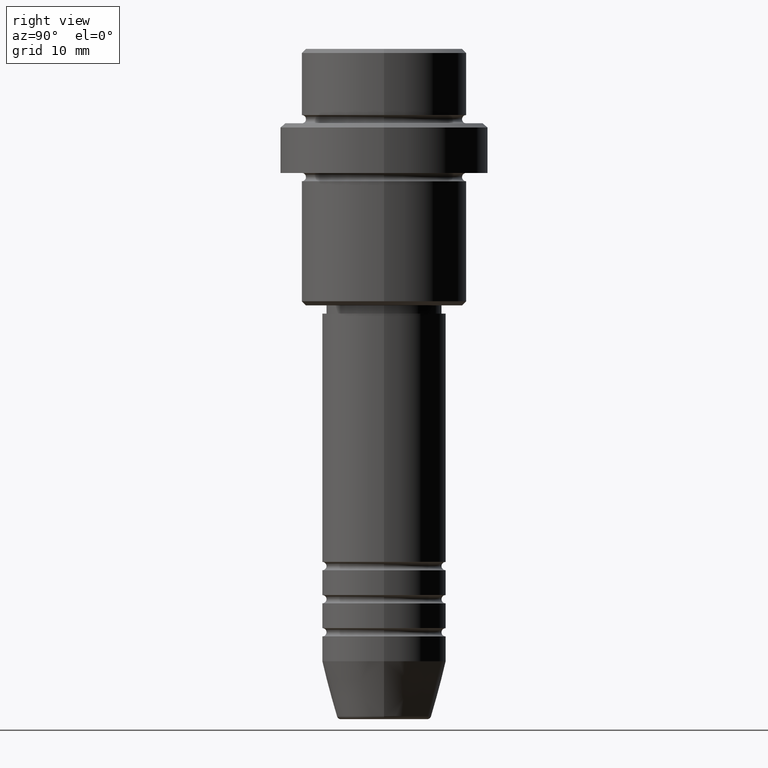
[diagram: clean part render]
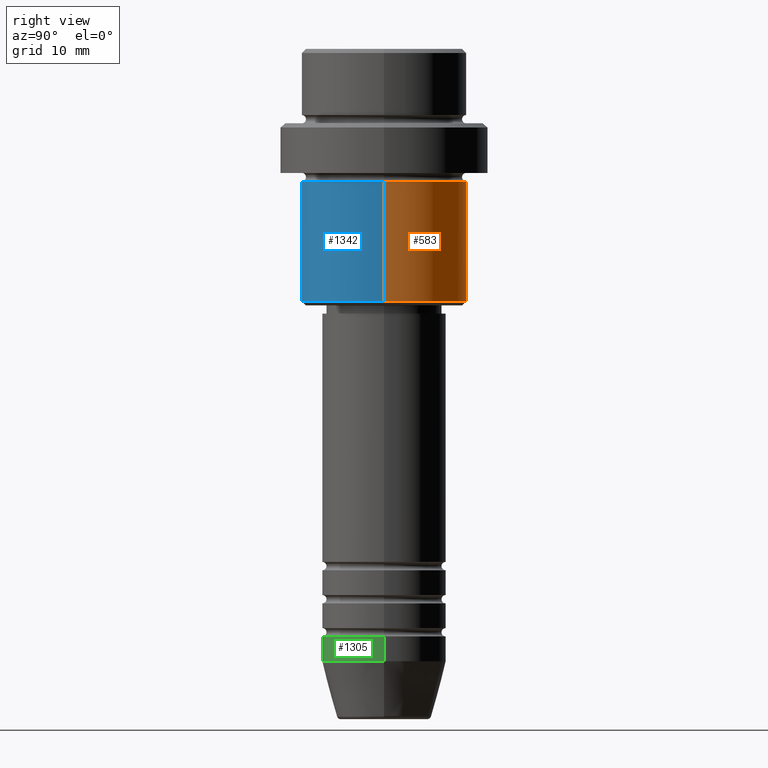
[diagram: same view with three faces highlighted in distinct colors, each labeled with its STEP entity id]
A machine part, right view with three faces highlighted in distinct colors.
Their STEP definitions:

[orange] entity #583 — the highlighted cylindrical surface (partial cylindrical patch) has radius 10 mm, axis along (-0, -0, 1).
#48 = AXIS2_PLACEMENT_3D ( 'NONE', #392, #736, #515 ) ;
#159 = ORIENTED_EDGE ( 'NONE', *, *, #489, .T. ) ;
#193 = LINE ( 'NONE', #874, #1370 ) ;
#234 = CARTESIAN_POINT ( 'NONE',  ( 9.999999999999998224, 0.000000000000000000, -16.00000000000000000 ) ) ;
#270 = EDGE_CURVE ( 'NONE', #924, #590, #950, .T. ) ;
#283 = ORIENTED_EDGE ( 'NONE', *, *, #270, .F. ) ;
#371 = FACE_OUTER_BOUND ( 'NONE', #1042, .T. ) ;
#381 = CARTESIAN_POINT ( 'NONE',  ( -9.999999999999998224, 1.224646799147353059E-15, -16.00000000000000000 ) ) ;
#392 = CARTESIAN_POINT ( 'NONE',  ( 0.000000000000000000, 0.000000000000000000, 0.000000000000000000 ) ) ;
#409 = DIRECTION ( 'NONE',  ( -0.000000000000000000, -0.000000000000000000, 1.000000000000000000 ) ) ;
#410 = ORIENTED_EDGE ( 'NONE', *, *, #754, .T. ) ;
#416 = ORIENTED_EDGE ( 'NONE', *, *, #809, .F. ) ;
#439 = DIRECTION ( 'NONE',  ( -0.000000000000000000, -0.000000000000000000, 1.000000000000000000 ) ) ;
#449 = DIRECTION ( 'NONE',  ( -0.000000000000000000, -0.000000000000000000, 1.000000000000000000 ) ) ;
#489 = EDGE_CURVE ( 'NONE', #1166, #1379, #718, .T. ) ;
#511 = AXIS2_PLACEMENT_3D ( 'NONE', #991, #439, #896 ) ;
#515 = DIRECTION ( 'NONE',  ( 1.000000000000000000, 0.000000000000000000, 0.000000000000000000 ) ) ;
#526 = CARTESIAN_POINT ( 'NONE',  ( -9.999999999999998224, 1.224646799147353059E-15, 0.000000000000000000 ) ) ;
#583 = ADVANCED_FACE ( 'NONE', ( #371 ), #727, .T. ) ;
#590 = VERTEX_POINT ( 'NONE', #381 ) ;
#638 = LINE ( 'NONE', #526, #1170 ) ;
#718 = CIRCLE ( 'NONE', #1258, 9.999999999999998224 ) ;
#727 = CYLINDRICAL_SURFACE ( 'NONE', #48, 9.999999999999998224 ) ;
#736 = DIRECTION ( 'NONE',  ( -0.000000000000000000, -0.000000000000000000, 1.000000000000000000 ) ) ;
#754 = EDGE_CURVE ( 'NONE', #1379, #590, #638, .T. ) ;
#809 = EDGE_CURVE ( 'NONE', #1166, #924, #193, .T. ) ;
#874 = CARTESIAN_POINT ( 'NONE',  ( 9.999999999999998224, 0.000000000000000000, 0.000000000000000000 ) ) ;
#896 = DIRECTION ( 'NONE',  ( 1.000000000000000000, 0.000000000000000000, 0.000000000000000000 ) ) ;
#912 = CARTESIAN_POINT ( 'NONE',  ( 0.000000000000000000, 0.000000000000000000, -30.49999999999998224 ) ) ;
#924 = VERTEX_POINT ( 'NONE', #234 ) ;
#950 = CIRCLE ( 'NONE', #511, 9.999999999999998224 ) ;
#991 = CARTESIAN_POINT ( 'NONE',  ( 0.000000000000000000, 0.000000000000000000, -16.00000000000000000 ) ) ;
#1042 = EDGE_LOOP ( 'NONE', ( #159, #410, #283, #416 ) ) ;
#1166 = VERTEX_POINT ( 'NONE', #1178 ) ;
#1170 = VECTOR ( 'NONE', #409, 1000.000000000000000 ) ;
#1178 = CARTESIAN_POINT ( 'NONE',  ( 9.999999999999998224, 0.000000000000000000, -30.49999999999998224 ) ) ;
#1220 = CARTESIAN_POINT ( 'NONE',  ( -9.999999999999998224, 1.224646799147353059E-15, -30.49999999999998224 ) ) ;
#1222 = DIRECTION ( 'NONE',  ( -1.000000000000000000, 0.000000000000000000, 0.000000000000000000 ) ) ;
#1258 = AXIS2_PLACEMENT_3D ( 'NONE', #912, #449, #1222 ) ;
#1294 = DIRECTION ( 'NONE',  ( -0.000000000000000000, -0.000000000000000000, 1.000000000000000000 ) ) ;
#1370 = VECTOR ( 'NONE', #1294, 1000.000000000000000 ) ;
#1379 = VERTEX_POINT ( 'NONE', #1220 ) ;

[blue] entity #1342 — the highlighted cylindrical surface (partial cylindrical patch) has radius 10 mm, axis along (-0, -0, 1).
#24 = CIRCLE ( 'NONE', #832, 9.999999999999998224 ) ;
#134 = DIRECTION ( 'NONE',  ( 1.000000000000000000, 0.000000000000000000, 0.000000000000000000 ) ) ;
#193 = LINE ( 'NONE', #874, #1370 ) ;
#195 = CARTESIAN_POINT ( 'NONE',  ( 0.000000000000000000, 0.000000000000000000, -16.00000000000000000 ) ) ;
#224 = EDGE_CURVE ( 'NONE', #590, #924, #24, .T. ) ;
#227 = CIRCLE ( 'NONE', #882, 9.999999999999998224 ) ;
#234 = CARTESIAN_POINT ( 'NONE',  ( 9.999999999999998224, 0.000000000000000000, -16.00000000000000000 ) ) ;
#237 = CARTESIAN_POINT ( 'NONE',  ( 0.000000000000000000, 0.000000000000000000, 0.000000000000000000 ) ) ;
#243 = FACE_OUTER_BOUND ( 'NONE', #829, .T. ) ;
#298 = EDGE_CURVE ( 'NONE', #1379, #1166, #227, .T. ) ;
#381 = CARTESIAN_POINT ( 'NONE',  ( -9.999999999999998224, 1.224646799147353059E-15, -16.00000000000000000 ) ) ;
#399 = ORIENTED_EDGE ( 'NONE', *, *, #298, .T. ) ;
#409 = DIRECTION ( 'NONE',  ( -0.000000000000000000, -0.000000000000000000, 1.000000000000000000 ) ) ;
#417 = AXIS2_PLACEMENT_3D ( 'NONE', #237, #1200, #134 ) ;
#493 = ORIENTED_EDGE ( 'NONE', *, *, #754, .F. ) ;
#526 = CARTESIAN_POINT ( 'NONE',  ( -9.999999999999998224, 1.224646799147353059E-15, 0.000000000000000000 ) ) ;
#564 = CYLINDRICAL_SURFACE ( 'NONE', #417, 9.999999999999998224 ) ;
#590 = VERTEX_POINT ( 'NONE', #381 ) ;
#638 = LINE ( 'NONE', #526, #1170 ) ;
#754 = EDGE_CURVE ( 'NONE', #1379, #590, #638, .T. ) ;
#769 = DIRECTION ( 'NONE',  ( 1.000000000000000000, 0.000000000000000000, 0.000000000000000000 ) ) ;
#809 = EDGE_CURVE ( 'NONE', #1166, #924, #193, .T. ) ;
#829 = EDGE_LOOP ( 'NONE', ( #493, #399, #1278, #844 ) ) ;
#832 = AXIS2_PLACEMENT_3D ( 'NONE', #195, #1102, #769 ) ;
#844 = ORIENTED_EDGE ( 'NONE', *, *, #224, .F. ) ;
#874 = CARTESIAN_POINT ( 'NONE',  ( 9.999999999999998224, 0.000000000000000000, 0.000000000000000000 ) ) ;
#882 = AXIS2_PLACEMENT_3D ( 'NONE', #1081, #1072, #1291 ) ;
#924 = VERTEX_POINT ( 'NONE', #234 ) ;
#1072 = DIRECTION ( 'NONE',  ( -0.000000000000000000, -0.000000000000000000, 1.000000000000000000 ) ) ;
#1081 = CARTESIAN_POINT ( 'NONE',  ( 0.000000000000000000, 0.000000000000000000, -30.49999999999998224 ) ) ;
#1102 = DIRECTION ( 'NONE',  ( -0.000000000000000000, -0.000000000000000000, 1.000000000000000000 ) ) ;
#1166 = VERTEX_POINT ( 'NONE', #1178 ) ;
#1170 = VECTOR ( 'NONE', #409, 1000.000000000000000 ) ;
#1178 = CARTESIAN_POINT ( 'NONE',  ( 9.999999999999998224, 0.000000000000000000, -30.49999999999998224 ) ) ;
#1200 = DIRECTION ( 'NONE',  ( -0.000000000000000000, -0.000000000000000000, 1.000000000000000000 ) ) ;
#1220 = CARTESIAN_POINT ( 'NONE',  ( -9.999999999999998224, 1.224646799147353059E-15, -30.49999999999998224 ) ) ;
#1278 = ORIENTED_EDGE ( 'NONE', *, *, #809, .T. ) ;
#1291 = DIRECTION ( 'NONE',  ( -1.000000000000000000, 0.000000000000000000, 0.000000000000000000 ) ) ;
#1294 = DIRECTION ( 'NONE',  ( -0.000000000000000000, -0.000000000000000000, 1.000000000000000000 ) ) ;
#1342 = ADVANCED_FACE ( 'NONE', ( #243 ), #564, .T. ) ;
#1370 = VECTOR ( 'NONE', #1294, 1000.000000000000000 ) ;
#1379 = VERTEX_POINT ( 'NONE', #1220 ) ;

[green] entity #1305 — the highlighted cylindrical surface (partial cylindrical patch) has radius 7.5 mm, axis along (-0, -0, 1).
#25 = CARTESIAN_POINT ( 'NONE',  ( 0.000000000000000000, 0.000000000000000000, 0.000000000000000000 ) ) ;
#51 = ORIENTED_EDGE ( 'NONE', *, *, #1100, .F. ) ;
#62 = DIRECTION ( 'NONE',  ( -0.000000000000000000, -0.000000000000000000, 1.000000000000000000 ) ) ;
#79 = CARTESIAN_POINT ( 'NONE',  ( 0.000000000000000000, 0.000000000000000000, -74.00000000000000000 ) ) ;
#142 = VECTOR ( 'NONE', #732, 1000.000000000000000 ) ;
#151 = CARTESIAN_POINT ( 'NONE',  ( -7.500000000000000000, 9.184850993605147944E-16, 0.000000000000000000 ) ) ;
#161 = DIRECTION ( 'NONE',  ( 1.000000000000000000, 0.000000000000000000, 0.000000000000000000 ) ) ;
#182 = VERTEX_POINT ( 'NONE', #1022 ) ;
#263 = VECTOR ( 'NONE', #1262, 1000.000000000000000 ) ;
#299 = LINE ( 'NONE', #408, #142 ) ;
#305 = AXIS2_PLACEMENT_3D ( 'NONE', #79, #830, #161 ) ;
#408 = CARTESIAN_POINT ( 'NONE',  ( 7.500000000000000000, 0.000000000000000000, 0.000000000000000000 ) ) ;
#502 = VERTEX_POINT ( 'NONE', #800 ) ;
#523 = ORIENTED_EDGE ( 'NONE', *, *, #644, .F. ) ;
#578 = EDGE_CURVE ( 'NONE', #983, #182, #599, .T. ) ;
#596 = VERTEX_POINT ( 'NONE', #1374 ) ;
#599 = CIRCLE ( 'NONE', #305, 7.500000000000000000 ) ;
#644 = EDGE_CURVE ( 'NONE', #596, #502, #1395, .T. ) ;
#710 = LINE ( 'NONE', #151, #263 ) ;
#732 = DIRECTION ( 'NONE',  ( -0.000000000000000000, -0.000000000000000000, 1.000000000000000000 ) ) ;
#742 = AXIS2_PLACEMENT_3D ( 'NONE', #25, #1307, #785 ) ;
#785 = DIRECTION ( 'NONE',  ( 1.000000000000000000, 0.000000000000000000, 0.000000000000000000 ) ) ;
#800 = CARTESIAN_POINT ( 'NONE',  ( 7.500000000000000000, 0.000000000000000000, -71.00000000000000000 ) ) ;
#814 = CARTESIAN_POINT ( 'NONE',  ( 0.000000000000000000, 0.000000000000000000, -71.00000000000000000 ) ) ;
#830 = DIRECTION ( 'NONE',  ( -0.000000000000000000, -0.000000000000000000, 1.000000000000000000 ) ) ;
#909 = FACE_OUTER_BOUND ( 'NONE', #1269, .T. ) ;
#944 = ORIENTED_EDGE ( 'NONE', *, *, #1173, .T. ) ;
#954 = CARTESIAN_POINT ( 'NONE',  ( -7.500000000000000000, 9.184850993605147944E-16, -74.00000000000000000 ) ) ;
#983 = VERTEX_POINT ( 'NONE', #954 ) ;
#1022 = CARTESIAN_POINT ( 'NONE',  ( 7.500000000000000000, 0.000000000000000000, -74.00000000000000000 ) ) ;
#1034 = AXIS2_PLACEMENT_3D ( 'NONE', #814, #62, #1364 ) ;
#1100 = EDGE_CURVE ( 'NONE', #983, #596, #710, .T. ) ;
#1116 = CYLINDRICAL_SURFACE ( 'NONE', #742, 7.500000000000000000 ) ;
#1144 = ORIENTED_EDGE ( 'NONE', *, *, #578, .T. ) ;
#1173 = EDGE_CURVE ( 'NONE', #182, #502, #299, .T. ) ;
#1262 = DIRECTION ( 'NONE',  ( -0.000000000000000000, -0.000000000000000000, 1.000000000000000000 ) ) ;
#1269 = EDGE_LOOP ( 'NONE', ( #51, #1144, #944, #523 ) ) ;
#1305 = ADVANCED_FACE ( 'NONE', ( #909 ), #1116, .T. ) ;
#1307 = DIRECTION ( 'NONE',  ( -0.000000000000000000, -0.000000000000000000, 1.000000000000000000 ) ) ;
#1364 = DIRECTION ( 'NONE',  ( 1.000000000000000000, 0.000000000000000000, 0.000000000000000000 ) ) ;
#1374 = CARTESIAN_POINT ( 'NONE',  ( -7.500000000000000000, 9.184850993605147944E-16, -71.00000000000000000 ) ) ;
#1395 = CIRCLE ( 'NONE', #1034, 7.500000000000000000 ) ;